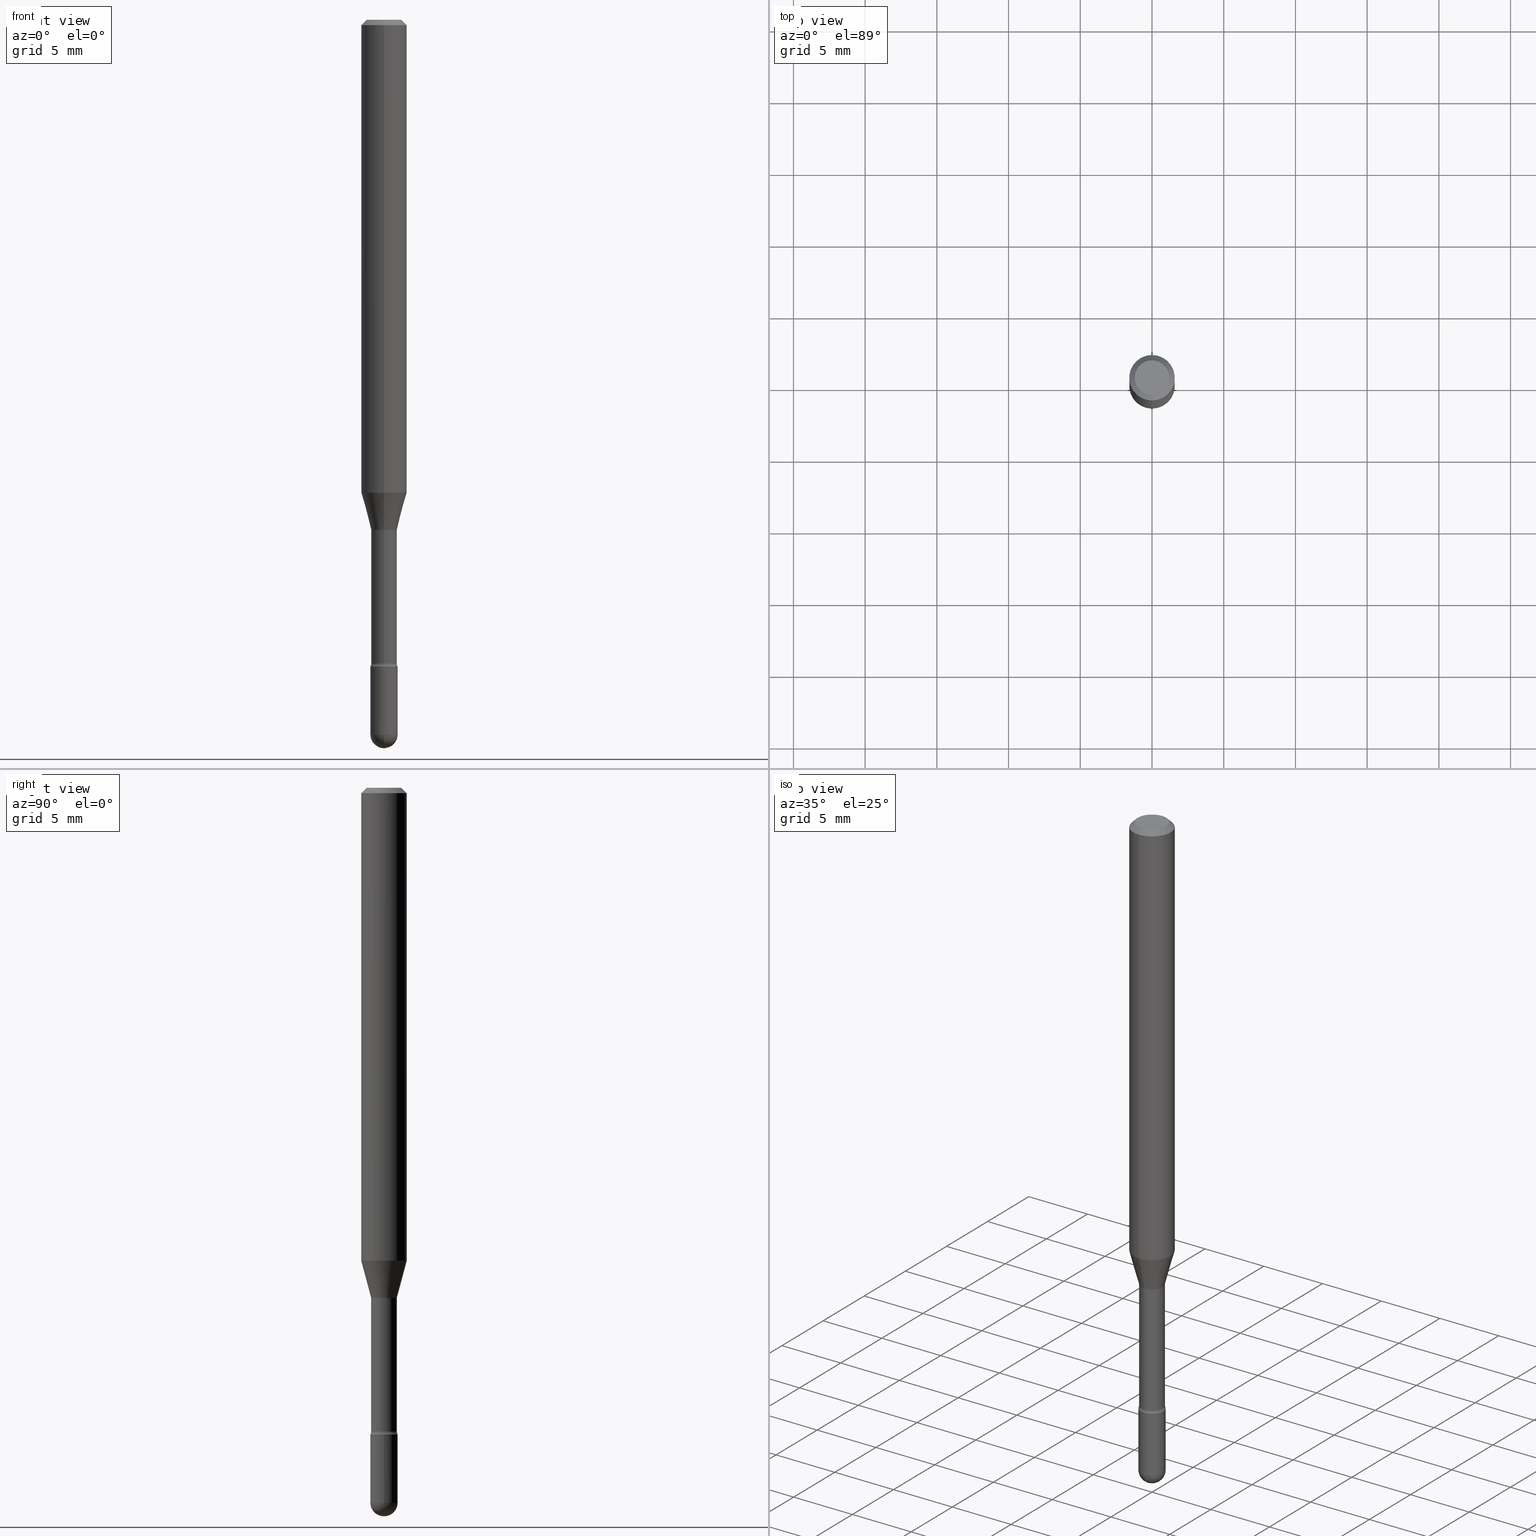
[diagram: canonical four-view strip — front | top / right | iso, engineering-drawing reading convention]
A machine part, canonical four-view strip (front | top / right | iso — engineering-drawing reading convention). The complete STEP part file that produces these views, byte-faithful:
ISO-10303-21;
HEADER;
FILE_DESCRIPTION (( 'STEP AP203' ),
    '1' );
FILE_NAME ('09817.STEP',
    '2024-04-10T01:46:46',
    ( '' ),
    ( '' ),
    'SwSTEP 2.0',
    'SolidWorks 2023',
    '' );
FILE_SCHEMA (( 'CONFIG_CONTROL_DESIGN' ));
ENDSEC;

DATA;
#1 = EDGE_CURVE ( 'NONE', #482, #244, #162, .T. ) ;
#2 = MECHANICAL_CONTEXT ( 'NONE', #21, 'mechanical' ) ;
#3 = EDGE_LOOP ( 'NONE', ( #258, #252, #180, #69 ) ) ;
#4 = FACE_OUTER_BOUND ( 'NONE', #345, .T. ) ;
#5 = AXIS2_PLACEMENT_3D ( 'NONE', #454, #37, #512 ) ;
#6 = AXIS2_PLACEMENT_3D ( 'NONE', #473, #347, #255 ) ;
#7 = DIRECTION ( 'NONE',  ( -2.445465254371968142E-29, 3.491486425241759553E-15, 1.000000000000000000 ) ) ;
#8 = DIRECTION ( 'NONE',  ( 2.445465254371967862E-29, -3.491486425241759553E-15, -1.000000000000000000 ) ) ;
#9 = ORIENTED_EDGE ( 'NONE', *, *, #80, .F. ) ;
#10 = EDGE_CURVE ( 'NONE', #396, #169, #560, .T. ) ;
#11 = ORIENTED_EDGE ( 'NONE', *, *, #10, .F. ) ;
#12 = DIRECTION ( 'NONE',  ( -2.445465254371968142E-29, 3.491486425241759553E-15, 1.000000000000000000 ) ) ;
#13 = APPROVAL_ROLE ( '' ) ;
#14 = CARTESIAN_POINT ( 'NONE',  ( -3.508938745537004743E-16, -0.05025000000000488104, -1.401974787463810879 ) ) ;
#15 = CARTESIAN_POINT ( 'NONE',  ( -2.461494343883982794E-16, -0.03525000000000625550, -1.767098259685360384 ) ) ;
#16 = CARTESIAN_POINT ( 'NONE',  ( -1.169113584055446105E-44, 1.669184350826100908E-30, 4.780733988912460139E-16 ) ) ;
#17 = AXIS2_PLACEMENT_3D ( 'NONE', #123, #481, #90 ) ;
#18 = DIRECTION ( 'NONE',  ( -6.982962677686265922E-15, -1.000000000000000000, 4.370956789862821150E-15 ) ) ;
#19 = APPROVAL_PERSON_ORGANIZATION ( #270, #321, #448 ) ;
#20 = DATE_TIME_ROLE ( 'creation_date' ) ;
#21 = APPLICATION_CONTEXT ( 'configuration controlled 3d designs of mechanical parts and assemblies' ) ;
#22 = PERSON_AND_ORGANIZATION ( #108, #428 ) ;
#23 = PERSON_AND_ORGANIZATION ( #108, #428 ) ;
#24 = DIRECTION ( 'NONE',  ( -2.445465254371968142E-29, 3.491486425241759553E-15, 1.000000000000000000 ) ) ;
#25 = DIRECTION ( 'NONE',  ( 1.000000000000000000, -6.982962677686265922E-15, 4.883557194083112340E-29 ) ) ;
#26 = AXIS2_PLACEMENT_3D ( 'NONE', #202, #563, #508 ) ;
#27 = DIRECTION ( 'NONE',  ( -2.445465254371968142E-29, 3.491486425241759553E-15, 1.000000000000000000 ) ) ;
#28 = ADVANCED_FACE ( 'NONE', ( #100 ), #229, .T. ) ;
#29 = CARTESIAN_POINT ( 'NONE',  ( 0.000000000000000000, 0.000000000000000000, 0.000000000000000000 ) ) ;
#30 = VERTEX_POINT ( 'NONE', #38 ) ;
#31 = CARTESIAN_POINT ( 'NONE',  ( 4.321383671524591751E-29, -6.169790597593636121E-15, -1.767098259685360606 ) ) ;
#32 = DIRECTION ( 'NONE',  ( -2.445465254371968142E-29, 3.491486425241759553E-15, 1.000000000000000000 ) ) ;
#33 = ORIENTED_EDGE ( 'NONE', *, *, #543, .T. ) ;
#34 = CARTESIAN_POINT ( 'NONE',  ( 4.340707130978617347E-29, -6.197379376446583794E-15, -1.775000000000000133 ) ) ;
#35 = APPLICATION_CONTEXT ( 'configuration controlled 3d designs of mechanical parts and assemblies' ) ;
#36 = ORIENTED_EDGE ( 'NONE', *, *, #236, .T. ) ;
#37 = DIRECTION ( 'NONE',  ( -2.445465254371968142E-29, 3.491486425241759553E-15, 1.000000000000000000 ) ) ;
#38 = CARTESIAN_POINT ( 'NONE',  ( 4.440892098500945650E-16, 0.06249999999999995143, -0.01500000000000030129 ) ) ;
#39 = EDGE_CURVE ( 'NONE', #209, #77, #195, .T. ) ;
#40 = EDGE_LOOP ( 'NONE', ( #566, #267, #472, #11 ) ) ;
#41 = DIRECTION ( 'NONE',  ( -2.438088387897960049E-29, 3.491481338843145188E-15, 1.000000000000000000 ) ) ;
#42 = VERTEX_POINT ( 'NONE', #557 ) ;
#43 = AXIS2_PLACEMENT_3D ( 'NONE', #348, #429, #434 ) ;
#44 = SPHERICAL_SURFACE ( 'NONE', #146, 0.03750000000000004025 ) ;
#45 = DIRECTION ( 'NONE',  ( -2.445465254371968142E-29, 3.491486425241759553E-15, 1.000000000000000000 ) ) ;
#46 = ORIENTED_EDGE ( 'NONE', *, *, #39, .F. ) ;
#47 = DIRECTION ( 'NONE',  ( -6.982962677686265922E-15, -1.000000000000000000, 0.000000000000000000 ) ) ;
#48 = VERTEX_POINT ( 'NONE', #433 ) ;
#49 = FACE_OUTER_BOUND ( 'NONE', #217, .T. ) ;
#50 = CARTESIAN_POINT ( 'NONE',  ( -3.508938745536921420E-16, -0.05025000000000623412, -1.767098259685360384 ) ) ;
#51 = ORIENTED_EDGE ( 'NONE', *, *, #80, .T. ) ;
#52 = EDGE_CURVE ( 'NONE', #441, #561, #238, .T. ) ;
#53 = AXIS2_PLACEMENT_3D ( 'NONE', #221, #356, #94 ) ;
#54 = APPROVAL_PERSON_ORGANIZATION ( #456, #197, #346 ) ;
#55 = FACE_OUTER_BOUND ( 'NONE', #359, .T. ) ;
#56 = ORIENTED_EDGE ( 'NONE', *, *, #187, .T. ) ;
#57 = CIRCLE ( 'NONE', #175, 0.06250000000000000000 ) ;
#58 = AXIS2_PLACEMENT_3D ( 'NONE', #559, #208, #471 ) ;
#59 = ADVANCED_FACE ( 'NONE', ( #303 ), #329, .T. ) ;
#60 = EDGE_CURVE ( 'NONE', #42, #333, #161, .T. ) ;
#61 = CC_DESIGN_PERSON_AND_ORGANIZATION_ASSIGNMENT ( #212, #558, ( #410 ) ) ;
#62 = PERSON_AND_ORGANIZATION_ROLE ( 'design_supplier' ) ;
#63 = EDGE_CURVE ( 'NONE', #42, #505, #57, .T. ) ;
#64 = LINE ( 'NONE', #565, #531 ) ;
#65 = AXIS2_PLACEMENT_3D ( 'NONE', #308, #96, #266 ) ;
#66 =( GEOMETRIC_REPRESENTATION_CONTEXT ( 3 ) GLOBAL_UNCERTAINTY_ASSIGNED_CONTEXT ( ( #460 ) ) GLOBAL_UNIT_ASSIGNED_CONTEXT ( ( #449, #499, #173 ) ) REPRESENTATION_CONTEXT ( 'NONE', 'WORKASPACE' ) );
#67 = DIRECTION ( 'NONE',  ( -2.445465254371968142E-29, 3.491486425241759553E-15, 1.000000000000000000 ) ) ;
#68 = CARTESIAN_POINT ( 'NONE',  ( 3.668197881557972567E-31, -5.237229637862668616E-17, -0.01500000000000008271 ) ) ;
#69 = ORIENTED_EDGE ( 'NONE', *, *, #385, .F. ) ;
#70 = DIRECTION ( 'NONE',  ( -6.982962677686266711E-15, -1.000000000000000000, 0.000000000000000000 ) ) ;
#71 = CIRCLE ( 'NONE', #204, 0.04749999999999999362 ) ;
#72 = DIRECTION ( 'NONE',  ( 1.000000000000000000, -6.982962677686268288E-15, 0.000000000000000000 ) ) ;
#73 = ORIENTED_EDGE ( 'NONE', *, *, #509, .F. ) ;
#74 = ADVANCED_FACE ( 'NONE', ( #4 ), #403, .F. ) ;
#75 = CARTESIAN_POINT ( 'NONE',  ( 3.490935988483317697E-16, 0.03576111260565909694, -1.398092501787273179 ) ) ;
#76 = CARTESIAN_POINT ( 'NONE',  ( 4.440892098500940720E-16, 0.06249999999999543421, -1.298301615493748562 ) ) ;
#77 = VERTEX_POINT ( 'NONE', #500 ) ;
#78 = CARTESIAN_POINT ( 'NONE',  ( 4.340707130978617347E-29, -6.197379376446583794E-15, -1.775000000000000133 ) ) ;
#79 = ORIENTED_EDGE ( 'NONE', *, *, #543, .F. ) ;
#80 = EDGE_CURVE ( 'NONE', #169, #294, #107, .T. ) ;
#81 = DIRECTION ( 'NONE',  ( 1.000000000000000000, -6.982962677686266711E-15, 4.876176775795935793E-29 ) ) ;
#82 = APPROVAL ( #228, 'UNSPECIFIED' ) ;
#83 = MANIFOLD_SOLID_BREP ( 'Body-Move/Copy2[1]', #203 ) ;
#84 = VECTOR ( 'NONE', #207, 39.37007874015748143 ) ;
#85 = ORIENTED_EDGE ( 'NONE', *, *, #457, .F. ) ;
#86 = CIRCLE ( 'NONE', #401, 0.03750000000000004025 ) ;
#87 = DIRECTION ( 'NONE',  ( 1.000000000000000000, -7.105427357601001070E-15, 4.926315570832500212E-29 ) ) ;
#88 = ORIENTED_EDGE ( 'NONE', *, *, #259, .F. ) ;
#89 = COORDINATED_UNIVERSAL_TIME_OFFSET ( 5, 0, .BEHIND. ) ;
#90 = DIRECTION ( 'NONE',  ( -6.982962677686266711E-15, -1.000000000000000000, 0.000000000000000000 ) ) ;
#91 = CARTESIAN_POINT ( 'NONE',  ( -1.169113584055446105E-44, 1.669184350826100908E-30, 4.780733988912460139E-16 ) ) ;
#92 = ADVANCED_FACE ( 'NONE', ( #327 ), #277, .T. ) ;
#93 = CARTESIAN_POINT ( 'NONE',  ( 3.316907271900976096E-16, 0.04749999999999999362, 3.181769901283382890E-17 ) ) ;
#94 = DIRECTION ( 'NONE',  ( -6.982962677686266711E-15, -1.000000000000000000, 3.491486425241760737E-15 ) ) ;
#95 = VERTEX_POINT ( 'NONE', #554 ) ;
#96 = DIRECTION ( 'NONE',  ( -2.445465254371968142E-29, 3.491486425241759553E-15, 1.000000000000000000 ) ) ;
#97 = VECTOR ( 'NONE', #506, 39.37007874015748143 ) ;
#98 = LOCAL_TIME ( 21, 46, 46.00000000000000000, #273 ) ;
#99 = APPROVAL_DATE_TIME ( #235, #197 ) ;
#100 = FACE_OUTER_BOUND ( 'NONE', #479, .T. ) ;
#101 = DIRECTION ( 'NONE',  ( -1.000000000000000000, 6.982962677686265922E-15, -4.883557194083112340E-29 ) ) ;
#102 = ORIENTED_EDGE ( 'NONE', *, *, #220, .T. ) ;
#103 = CARTESIAN_POINT ( 'NONE',  ( -2.497185146378532502E-16, -0.03576111260566886690, -1.398092501787273179 ) ) ;
#104 = EDGE_CURVE ( 'NONE', #505, #30, #251, .T. ) ;
#105 = CYLINDRICAL_SURFACE ( 'NONE', #140, 0.03749999999999999861 ) ;
#106 = CIRCLE ( 'NONE', #239, 0.01499999999999997689 ) ;
#107 = LINE ( 'NONE', #408, #151 ) ;
#108 = PERSON ( 'UNSPECIFIED', 'UNSPECIFIED', 'UNSPECIFIED', ('UNSPECIFIED'), ('UNSPECIFIED'), ('UNSPECIFIED') ) ;
#109 = TOROIDAL_SURFACE ( 'NONE', #253, 0.05024999999999998912, 0.01500000000000001506 ) ;
#110 = CARTESIAN_POINT ( 'NONE',  ( 0.03749999999999999861, -2.618611004132350016E-16, 1.828566290923475922E-30 ) ) ;
#111 = APPLICATION_PROTOCOL_DEFINITION ( 'international standard', 'config_control_design', 1994, #35 ) ;
#112 = ORIENTED_EDGE ( 'NONE', *, *, #544, .T. ) ;
#113 = CARTESIAN_POINT ( 'NONE',  ( 4.364351673553919652E-16, 0.06249999999999995143, -0.01500000000000030129 ) ) ;
#114 = ADVANCED_FACE ( 'NONE', ( #281 ), #551, .T. ) ;
#115 = APPLICATION_PROTOCOL_DEFINITION ( 'international standard', 'config_control_design', 1994, #21 ) ;
#116 = CARTESIAN_POINT ( 'NONE',  ( 3.668197881557972567E-31, -5.237229637862668616E-17, -0.01500000000000008271 ) ) ;
#117 = ORIENTED_EDGE ( 'NONE', *, *, #389, .T. ) ;
#118 = CARTESIAN_POINT ( 'NONE',  ( 2.664535259100808486E-16, 0.03749999999999379524, -1.775000000000000133 ) ) ;
#119 = DIRECTION ( 'NONE',  ( -2.445465254371968142E-29, 3.491486425241759553E-15, 1.000000000000000000 ) ) ;
#120 = VECTOR ( 'NONE', #283, 39.37007874015748143 ) ;
#121 = AXIS2_PLACEMENT_3D ( 'NONE', #280, #409, #453 ) ;
#122 = ORIENTED_EDGE ( 'NONE', *, *, #257, .T. ) ;
#123 = CARTESIAN_POINT ( 'NONE',  ( 3.418986635518755214E-29, -4.881420991222554708E-15, -1.398092501787273179 ) ) ;
#124 = ORIENTED_EDGE ( 'NONE', *, *, #455, .F. ) ;
#125 = APPROVAL_STATUS ( 'not_yet_approved' ) ;
#126 = DIRECTION ( 'NONE',  ( 1.000000000000000000, -6.982962677686268288E-15, 0.000000000000000000 ) ) ;
#127 = ADVANCED_FACE ( 'NONE', ( #377 ), #451, .F. ) ;
#128 = EDGE_LOOP ( 'NONE', ( #159, #51, #134, #213, #507 ) ) ;
#129 = CARTESIAN_POINT ( 'NONE',  ( 4.340700826510243157E-29, -6.197388404804124065E-15, -1.775000000000000133 ) ) ;
#130 = ORIENTED_EDGE ( 'NONE', *, *, #60, .T. ) ;
#131 = AXIS2_PLACEMENT_3D ( 'NONE', #129, #45, #47 ) ;
#132 = DIRECTION ( 'NONE',  ( 1.000000000000000000, -6.982962677686268288E-15, 0.000000000000000000 ) ) ;
#133 = SECURITY_CLASSIFICATION ( '', '', #497 ) ;
#134 = ORIENTED_EDGE ( 'NONE', *, *, #236, .F. ) ;
#135 = VERTEX_POINT ( 'NONE', #118 ) ;
#136 = EDGE_CURVE ( 'NONE', #482, #209, #539, .T. ) ;
#137 = DIRECTION ( 'NONE',  ( 6.982962677686265922E-15, 1.000000000000000000, 0.000000000000000000 ) ) ;
#138 = CALENDAR_DATE ( 2024, 9, 4 ) ;
#139 = AXIS2_PLACEMENT_3D ( 'NONE', #34, #41, #423 ) ;
#140 = AXIS2_PLACEMENT_3D ( 'NONE', #269, #444, #323 ) ;
#141 = DIRECTION ( 'NONE',  ( -6.982962677686265922E-15, -1.000000000000000000, 3.491486425241759948E-15 ) ) ;
#142 = EDGE_LOOP ( 'NONE', ( #176, #416, #262, #376 ) ) ;
#143 = CARTESIAN_POINT ( 'NONE',  ( 3.428485609800787057E-29, -4.894968807958481776E-15, -1.401974787463811101 ) ) ;
#144 = PRODUCT_RELATED_PRODUCT_CATEGORY ( 'detail', '', ( #410 ) ) ;
#145 = DIRECTION ( 'NONE',  ( -1.000000000000000000, 7.105427357601001070E-15, -4.926315508542082329E-29 ) ) ;
#146 = AXIS2_PLACEMENT_3D ( 'NONE', #480, #517, #137 ) ;
#147 = CALENDAR_DATE ( 2024, 9, 4 ) ;
#148 = FACE_OUTER_BOUND ( 'NONE', #225, .T. ) ;
#149 = FACE_OUTER_BOUND ( 'NONE', #290, .T. ) ;
#150 = DIRECTION ( 'NONE',  ( 4.937700262164548042E-15, 0.7071067811865451302, -0.7071067811865499042 ) ) ;
#151 = VECTOR ( 'NONE', #541, 39.37007874015748143 ) ;
#152 = AXIS2_PLACEMENT_3D ( 'NONE', #344, #515, #126 ) ;
#153 = LOCAL_TIME ( 21, 46, 46.00000000000000000, #184 ) ;
#154 = ORIENTED_EDGE ( 'NONE', *, *, #200, .T. ) ;
#155 = ADVANCED_FACE ( 'NONE', ( #502 ), #289, .T. ) ;
#156 = EDGE_CURVE ( 'NONE', #77, #244, #530, .T. ) ;
#157 = ORIENTED_EDGE ( 'NONE', *, *, #52, .F. ) ;
#158 = DIRECTION ( 'NONE',  ( -2.445468806185136597E-29, 3.491481338843145583E-15, 1.000000000000000000 ) ) ;
#159 = ORIENTED_EDGE ( 'NONE', *, *, #10, .T. ) ;
#160 = LINE ( 'NONE', #110, #120 ) ;
#161 = LINE ( 'NONE', #340, #84 ) ;
#162 = CIRCLE ( 'NONE', #519, 0.01500000000000001159 ) ;
#163 = AXIS2_PLACEMENT_3D ( 'NONE', #233, #402, #398 ) ;
#164 = DIRECTION ( 'NONE',  ( 0.000000000000000000, 0.000000000000000000, 1.000000000000000000 ) ) ;
#165 = LOCAL_TIME ( 21, 46, 46.00000000000000000, #89 ) ;
#166 = ORIENTED_EDGE ( 'NONE', *, *, #201, .T. ) ;
#167 = CARTESIAN_POINT ( 'NONE',  ( 3.418986635518755214E-29, -4.881420991222554708E-15, -1.398092501787273179 ) ) ;
#168 = PLANE ( 'NONE',  #43 ) ;
#169 = VERTEX_POINT ( 'NONE', #459 ) ;
#170 = FACE_OUTER_BOUND ( 'NONE', #282, .T. ) ;
#171 = ORIENTED_EDGE ( 'NONE', *, *, #39, .T. ) ;
#172 = CARTESIAN_POINT ( 'NONE',  ( 3.570477247194844829E-16, 0.05024999999999509720, -1.401974787463811323 ) ) ;
#173 =( NAMED_UNIT ( * ) SI_UNIT ( $, .STERADIAN. ) SOLID_ANGLE_UNIT ( ) );
#174 = CARTESIAN_POINT ( 'NONE',  ( 0.03749999999999999861, -6.459240476859818795E-15, -1.775000000000000133 ) ) ;
#175 = AXIS2_PLACEMENT_3D ( 'NONE', #513, #27, #422 ) ;
#176 = ORIENTED_EDGE ( 'NONE', *, *, #191, .T. ) ;
#177 = VECTOR ( 'NONE', #24, 39.37007874015748143 ) ;
#178 = CC_DESIGN_APPROVAL ( #82, ( #477 ) ) ;
#179 = CC_DESIGN_PERSON_AND_ORGANIZATION_ASSIGNMENT ( #404, #192, ( #477 ) ) ;
#180 = ORIENTED_EDGE ( 'NONE', *, *, #326, .T. ) ;
#181 = ORIENTED_EDGE ( 'NONE', *, *, #183, .F. ) ;
#182 = DIRECTION ( 'NONE',  ( -6.982962677686266711E-15, -1.000000000000000000, 0.000000000000000000 ) ) ;
#183 = EDGE_CURVE ( 'NONE', #294, #514, #297, .T. ) ;
#184 = COORDINATED_UNIVERSAL_TIME_OFFSET ( 5, 0, .BEHIND. ) ;
#185 = CARTESIAN_POINT ( 'NONE',  ( 4.799232532138329338E-29, -6.852032127479672087E-15, -1.962499999999999689 ) ) ;
#186 = AXIS2_PLACEMENT_3D ( 'NONE', #31, #556, #336 ) ;
#187 = EDGE_CURVE ( 'NONE', #561, #514, #160, .T. ) ;
#188 = CIRCLE ( 'NONE', #163, 0.06250000000000000000 ) ;
#189 = CC_DESIGN_APPROVAL ( #321, ( #133 ) ) ;
#190 = DATE_AND_TIME ( #147, #367 ) ;
#191 = EDGE_CURVE ( 'NONE', #349, #48, #246, .T. ) ;
#192 = PERSON_AND_ORGANIZATION_ROLE ( 'creator' ) ;
#193 = LENGTH_MEASURE_WITH_UNIT ( LENGTH_MEASURE( 0.02539999999999999897 ), #365 );
#194 = DIRECTION ( 'NONE',  ( 6.982962677686265922E-15, 1.000000000000000000, 0.000000000000000000 ) ) ;
#195 = CIRCLE ( 'NONE', #475, 0.01500000000000001159 ) ;
#196 = VECTOR ( 'NONE', #150, 39.37007874015748143 ) ;
#197 = APPROVAL ( #125, 'UNSPECIFIED' ) ;
#198 = DATE_AND_TIME ( #240, #98 ) ;
#199 = LINE ( 'NONE', #525, #393 ) ;
#200 = EDGE_CURVE ( 'NONE', #48, #135, #392, .T. ) ;
#201 = EDGE_CURVE ( 'NONE', #335, #333, #214, .T. ) ;
#202 = CARTESIAN_POINT ( 'NONE',  ( 3.570477247194939493E-16, 0.05024999999999388983, -1.767098259685361050 ) ) ;
#203 = CLOSED_SHELL ( 'NONE', ( #424, #295, #114, #464, #155 ) ) ;
#204 = AXIS2_PLACEMENT_3D ( 'NONE', #391, #353, #546 ) ;
#205 = ORIENTED_EDGE ( 'NONE', *, *, #1, .T. ) ;
#206 = DIRECTION ( 'NONE',  ( -6.982962677686266711E-15, -1.000000000000000000, 3.491486425241760737E-15 ) ) ;
#207 = DIRECTION ( 'NONE',  ( -2.445465254371968142E-29, 3.491486425241759553E-15, 1.000000000000000000 ) ) ;
#208 = DIRECTION ( 'NONE',  ( -2.445468806185136597E-29, 3.491481338843145583E-15, 1.000000000000000000 ) ) ;
#209 = VERTEX_POINT ( 'NONE', #75 ) ;
#210 = CARTESIAN_POINT ( 'NONE',  ( 3.668197881557972567E-31, -5.237229637862668616E-17, -0.01500000000000008271 ) ) ;
#211 = DIRECTION ( 'NONE',  ( 7.105427357601001859E-15, 1.000000000000000000, 0.000000000000000000 ) ) ;
#212 = PERSON_AND_ORGANIZATION ( #108, #428 ) ;
#213 = ORIENTED_EDGE ( 'NONE', *, *, #187, .F. ) ;
#214 = LINE ( 'NONE', #374, #97 ) ;
#215 = TOROIDAL_SURFACE ( 'NONE', #65, 0.05024999999999998912, 0.01500000000000001506 ) ;
#216 = EDGE_LOOP ( 'NONE', ( #373, #154, #33, #357 ) ) ;
#217 = EDGE_LOOP ( 'NONE', ( #46, #439, #205, #338 ) ) ;
#218 = CARTESIAN_POINT ( 'NONE',  ( -0.03749999999999999861, -6.258252226053091317E-15, -1.775000000000000133 ) ) ;
#219 = ORIENTED_EDGE ( 'NONE', *, *, #491, .T. ) ;
#220 = EDGE_CURVE ( 'NONE', #381, #30, #382, .T. ) ;
#221 = CARTESIAN_POINT ( 'NONE',  ( -1.169113584055446105E-44, 1.669184350826100908E-30, 4.780733988912460139E-16 ) ) ;
#222 = AXIS2_PLACEMENT_3D ( 'NONE', #78, #334, #463 ) ;
#223 = CONICAL_SURFACE ( 'NONE', #331, 0.06250000000000000000, 0.7853981633974483900 ) ;
#224 = ORIENTED_EDGE ( 'NONE', *, *, #337, .T. ) ;
#225 = EDGE_LOOP ( 'NONE', ( #369, #171, #250, #555 ) ) ;
#226 = FACE_OUTER_BOUND ( 'NONE', #552, .T. ) ;
#227 = EDGE_CURVE ( 'NONE', #209, #482, #264, .T. ) ;
#228 = APPROVAL_STATUS ( 'not_yet_approved' ) ;
#229 = CYLINDRICAL_SURFACE ( 'NONE', #495, 0.06250000000000000000 ) ;
#230 = PERSON_AND_ORGANIZATION ( #108, #428 ) ;
#231 = AXIS2_PLACEMENT_3D ( 'NONE', #413, #411, #285 ) ;
#232 = CONICAL_SURFACE ( 'NONE', #511, 0.06250000000000000000, 0.7853981633974483900 ) ;
#233 = CARTESIAN_POINT ( 'NONE',  ( 3.668197881557972567E-31, -5.237229637862668616E-17, -0.01500000000000008271 ) ) ;
#234 = COORDINATED_UNIVERSAL_TIME_OFFSET ( 5, 0, .BEHIND. ) ;
#235 = DATE_AND_TIME ( #319, #165 ) ;
#236 = EDGE_CURVE ( 'NONE', #514, #294, #521, .T. ) ;
#237 = PRODUCT_DEFINITION_SHAPE ( 'NONE', 'NONE',  #288 ) ;
#238 = CIRCLE ( 'NONE', #276, 0.03749999999999999861 ) ;
#239 = AXIS2_PLACEMENT_3D ( 'NONE', #50, #101, #261 ) ;
#240 = CALENDAR_DATE ( 2024, 9, 4 ) ;
#241 = ADVANCED_FACE ( 'NONE', ( #420 ), #232, .T. ) ;
#242 = DIRECTION ( 'NONE',  ( -2.445465254371968142E-29, 3.491486425241759553E-15, 1.000000000000000000 ) ) ;
#243 = DIRECTION ( 'NONE',  ( -6.982962677686265133E-15, -1.000000000000000000, 0.000000000000000000 ) ) ;
#244 = VERTEX_POINT ( 'NONE', #339 ) ;
#245 = DIRECTION ( 'NONE',  ( -2.445465254371968142E-29, 3.491486425241759553E-15, 1.000000000000000000 ) ) ;
#246 = CIRCLE ( 'NONE', #5, 0.03525000000000008682 ) ;
#247 = CARTESIAN_POINT ( 'NONE',  ( 3.428480630248274959E-29, -4.894975938961098248E-15, -1.401974787463811101 ) ) ;
#248 = ORIENTED_EDGE ( 'NONE', *, *, #520, .F. ) ;
#249 = DIRECTION ( 'NONE',  ( -2.445465254371968142E-29, 3.491486425241759553E-15, 1.000000000000000000 ) ) ;
#250 = ORIENTED_EDGE ( 'NONE', *, *, #156, .T. ) ;
#251 = LINE ( 'NONE', #370, #383 ) ;
#252 = ORIENTED_EDGE ( 'NONE', *, *, #227, .T. ) ;
#253 = AXIS2_PLACEMENT_3D ( 'NONE', #143, #7, #492 ) ;
#254 = ORIENTED_EDGE ( 'NONE', *, *, #326, .F. ) ;
#255 = DIRECTION ( 'NONE',  ( -6.982962677686265922E-15, -1.000000000000000000, 0.000000000000000000 ) ) ;
#256 = ADVANCED_FACE ( 'NONE', ( #417 ), #427, .F. ) ;
#257 = EDGE_CURVE ( 'NONE', #209, #505, #199, .T. ) ;
#258 = ORIENTED_EDGE ( 'NONE', *, *, #257, .F. ) ;
#259 = EDGE_CURVE ( 'NONE', #95, #135, #562, .T. ) ;
#260 = DIRECTION ( 'NONE',  ( -2.445465254371968142E-29, 3.491486425241759553E-15, 1.000000000000000000 ) ) ;
#261 = DIRECTION ( 'NONE',  ( -6.982962677686266711E-15, -1.000000000000000000, 0.000000000000000000 ) ) ;
#262 = ORIENTED_EDGE ( 'NONE', *, *, #503, .F. ) ;
#263 = DIMENSIONAL_EXPONENTS ( 1.000000000000000000, 0.000000000000000000, 0.000000000000000000, 0.000000000000000000, 0.000000000000000000, 0.000000000000000000, 0.000000000000000000 ) ;
#264 = CIRCLE ( 'NONE', #498, 0.03576111260566398192 ) ;
#265 = ORIENTED_EDGE ( 'NONE', *, *, #156, .F. ) ;
#266 = DIRECTION ( 'NONE',  ( -6.982962677686265922E-15, -1.000000000000000000, 3.491486425241759553E-15 ) ) ;
#267 = ORIENTED_EDGE ( 'NONE', *, *, #455, .T. ) ;
#268 = SPHERICAL_SURFACE ( 'NONE', #121, 0.03750000000000004025 ) ;
#269 = CARTESIAN_POINT ( 'NONE',  ( 0.000000000000000000, 0.000000000000000000, 0.000000000000000000 ) ) ;
#270 = PERSON_AND_ORGANIZATION ( #108, #428 ) ;
#271 = EDGE_LOOP ( 'NONE', ( #85, #425, #469, #265 ) ) ;
#272 = VECTOR ( 'NONE', #442, 39.37007874015748143 ) ;
#273 = COORDINATED_UNIVERSAL_TIME_OFFSET ( 5, 0, .BEHIND. ) ;
#274 = CC_DESIGN_PERSON_AND_ORGANIZATION_ASSIGNMENT ( #230, #528, ( #288 ) ) ;
#275 = FACE_OUTER_BOUND ( 'NONE', #524, .T. ) ;
#276 = AXIS2_PLACEMENT_3D ( 'NONE', #351, #518, #132 ) ;
#277 = CYLINDRICAL_SURFACE ( 'NONE', #309, 0.03525000000000003825 ) ;
#278 = AXIS2_PLACEMENT_3D ( 'NONE', #301, #468, #387 ) ;
#279 = CC_DESIGN_DATE_AND_TIME_ASSIGNMENT ( #310, #20, ( #288 ) ) ;
#280 = CARTESIAN_POINT ( 'NONE',  ( 4.799232532138329899E-29, -6.852032127479672876E-15, -1.962499999999999911 ) ) ;
#281 = FACE_OUTER_BOUND ( 'NONE', #419, .T. ) ;
#282 = EDGE_LOOP ( 'NONE', ( #88, #79 ) ) ;
#283 = DIRECTION ( 'NONE',  ( -2.445468806185136877E-29, 3.491481338843145188E-15, 1.000000000000000000 ) ) ;
#284 = ORIENTED_EDGE ( 'NONE', *, *, #490, .F. ) ;
#285 = DIRECTION ( 'NONE',  ( -6.982962677686266711E-15, -1.000000000000000000, 0.000000000000000000 ) ) ;
#286 = AXIS2_PLACEMENT_3D ( 'NONE', #350, #260, #432 ) ;
#287 = ORIENTED_EDGE ( 'NONE', *, *, #52, .T. ) ;
#288 = PRODUCT_DEFINITION ( 'UNKNOWN', '', #477, #292 ) ;
#289 = CYLINDRICAL_SURFACE ( 'NONE', #547, 0.03749999999999999861 ) ;
#290 = EDGE_LOOP ( 'NONE', ( #388, #534, #430, #421 ) ) ;
#291 = DIRECTION ( 'NONE',  ( 2.445465254371968142E-29, -3.491486425241759553E-15, -1.000000000000000000 ) ) ;
#292 = DESIGN_CONTEXT ( 'detailed design', #35, 'design' ) ;
#293 = DIRECTION ( 'NONE',  ( -2.445465254371968142E-29, 3.491486425241759553E-15, 1.000000000000000000 ) ) ;
#294 = VERTEX_POINT ( 'NONE', #218 ) ;
#295 = ADVANCED_FACE ( 'NONE', ( #397 ), #44, .T. ) ;
#296 = EDGE_CURVE ( 'NONE', #48, #349, #452, .T. ) ;
#297 = CIRCLE ( 'NONE', #222, 0.03749999999999999861 ) ;
#298 = CC_DESIGN_PERSON_AND_ORGANIZATION_ASSIGNMENT ( #23, #536, ( #133 ) ) ;
#299 = AXIS2_PLACEMENT_3D ( 'NONE', #247, #293, #431 ) ;
#300 = CARTESIAN_POINT ( 'NONE',  ( 0.000000000000000000, 0.000000000000000000, 0.000000000000000000 ) ) ;
#301 = CARTESIAN_POINT ( 'NONE',  ( 2.023527029719468871E-45, -2.889117273218621529E-31, -8.274679046761115566E-17 ) ) ;
#302 = CC_DESIGN_SECURITY_CLASSIFICATION ( #133, ( #477 ) ) ;
#303 = FACE_OUTER_BOUND ( 'NONE', #3, .T. ) ;
#304 = ORIENTED_EDGE ( 'NONE', *, *, #63, .F. ) ;
#305 = DIRECTION ( 'NONE',  ( -2.445465254371968142E-29, 3.491486425241759553E-15, 1.000000000000000000 ) ) ;
#306 = ADVANCED_FACE ( 'NONE', ( #49 ), #215, .F. ) ;
#307 = ORIENTED_EDGE ( 'NONE', *, *, #220, .F. ) ;
#308 = CARTESIAN_POINT ( 'NONE',  ( 3.428485609800787057E-29, -4.894968807958481776E-15, -1.401974787463811101 ) ) ;
#309 = AXIS2_PLACEMENT_3D ( 'NONE', #16, #361, #206 ) ;
#310 = DATE_AND_TIME ( #138, #360 ) ;
#311 = AXIS2_PLACEMENT_3D ( 'NONE', #91, #523, #141 ) ;
#312 = DIRECTION ( 'NONE',  ( -6.982962677686266711E-15, -1.000000000000000000, 0.000000000000000000 ) ) ;
#313 = AXIS2_PLACEMENT_3D ( 'NONE', #300, #164, #478 ) ;
#314 = CARTESIAN_POINT ( 'NONE',  ( 3.174951490384956407E-29, -4.533002466365868923E-15, -1.298301615493748340 ) ) ;
#315 = DIRECTION ( 'NONE',  ( 1.000000000000000000, -6.982962677686268288E-15, 0.000000000000000000 ) ) ;
#316 = SHAPE_DEFINITION_REPRESENTATION ( #237, #390 ) ;
#317 = CYLINDRICAL_SURFACE ( 'NONE', #53, 0.03525000000000003825 ) ;
#318 = CARTESIAN_POINT ( 'NONE',  ( -2.497185146378532502E-16, -0.03576111260566886690, -1.398092501787273179 ) ) ;
#319 = CALENDAR_DATE ( 2024, 9, 4 ) ;
#320 = DIRECTION ( 'NONE',  ( 2.445465254371968142E-29, -3.491486425241759553E-15, -1.000000000000000000 ) ) ;
#321 = APPROVAL ( #445, 'UNSPECIFIED' ) ;
#322 = CIRCLE ( 'NONE', #384, 0.03749999999999999861 ) ;
#323 = DIRECTION ( 'NONE',  ( 1.000000000000000000, -6.982962677686266711E-15, 4.876176775795935793E-29 ) ) ;
#324 = DIRECTION ( 'NONE',  ( 6.982962677686265922E-15, 1.000000000000000000, -3.491486425241759553E-15 ) ) ;
#325 = CARTESIAN_POINT ( 'NONE',  ( -2.664535259099897351E-16, -0.03750000000000687506, -1.962499999999999689 ) ) ;
#326 = EDGE_CURVE ( 'NONE', #482, #42, #436, .T. ) ;
#327 = FACE_OUTER_BOUND ( 'NONE', #142, .T. ) ;
#328 = DIRECTION ( 'NONE',  ( 6.982962677686265922E-15, 1.000000000000000000, -3.483106191921935554E-15 ) ) ;
#329 = CONICAL_SURFACE ( 'NONE', #17, 0.03576111260566398192, 0.2617993877991499074 ) ;
#330 = DIRECTION ( 'NONE',  ( -6.982962677686265922E-15, -1.000000000000000000, 3.491486425241759553E-15 ) ) ;
#331 = AXIS2_PLACEMENT_3D ( 'NONE', #68, #320, #328 ) ;
#332 = CARTESIAN_POINT ( 'NONE',  ( 4.799232532138329338E-29, -6.852032127479672087E-15, -1.962499999999999689 ) ) ;
#333 = VERTEX_POINT ( 'NONE', #407 ) ;
#334 = DIRECTION ( 'NONE',  ( -2.445468806185136597E-29, 3.491481338843145583E-15, 1.000000000000000000 ) ) ;
#335 = VERTEX_POINT ( 'NONE', #540 ) ;
#336 = DIRECTION ( 'NONE',  ( -6.982962677686265922E-15, -1.000000000000000000, 3.491486425241759553E-15 ) ) ;
#337 = EDGE_CURVE ( 'NONE', #343, #396, #342, .T. ) ;
#338 = ORIENTED_EDGE ( 'NONE', *, *, #503, .T. ) ;
#339 = CARTESIAN_POINT ( 'NONE',  ( -2.461494343884065624E-16, -0.03525000000000488853, -1.401974787463811101 ) ) ;
#340 = CARTESIAN_POINT ( 'NONE',  ( -4.364351673553916201E-16, -0.06250000000000000000, 6.962913004688561093E-16 ) ) ;
#341 = CLOSED_SHELL ( 'NONE', ( #362, #92, #127, #241, #378, #415, #59, #28, #437, #74, #522, #256, #405, #306 ) ) ;
#342 = CIRCLE ( 'NONE', #358, 0.03750000000000004025 ) ;
#343 = VERTEX_POINT ( 'NONE', #535 ) ;
#344 = CARTESIAN_POINT ( 'NONE',  ( 4.340707130978617347E-29, -6.197379376446583794E-15, -1.775000000000000133 ) ) ;
#345 = EDGE_LOOP ( 'NONE', ( #112, #493 ) ) ;
#346 = APPROVAL_ROLE ( '' ) ;
#347 = DIRECTION ( 'NONE',  ( -2.445465254371968142E-29, 3.491486425241759553E-15, 1.000000000000000000 ) ) ;
#348 = CARTESIAN_POINT ( 'NONE',  ( 2.618611004132783890E-16, 0.03749999999999380218, -1.775000000000000133 ) ) ;
#349 = VERTEX_POINT ( 'NONE', #15 ) ;
#350 = CARTESIAN_POINT ( 'NONE',  ( 4.321377395121722522E-29, -6.169799585759774289E-15, -1.767098259685360384 ) ) ;
#351 = CARTESIAN_POINT ( 'NONE',  ( 4.799232532138329338E-29, -6.852032127479672087E-15, -1.962499999999999689 ) ) ;
#352 = AXIS2_PLACEMENT_3D ( 'NONE', #116, #242, #372 ) ;
#353 = DIRECTION ( 'NONE',  ( -2.445465254371968142E-29, 3.491486425241759553E-15, 1.000000000000000000 ) ) ;
#354 = ORIENTED_EDGE ( 'NONE', *, *, #200, .F. ) ;
#355 = CARTESIAN_POINT ( 'NONE',  ( 0.03749999999999999861, -6.786566852376363731E-15, -1.962499999999999689 ) ) ;
#356 = DIRECTION ( 'NONE',  ( -2.445465254371968142E-29, 3.491486425241759553E-15, 1.000000000000000000 ) ) ;
#357 = ORIENTED_EDGE ( 'NONE', *, *, #395, .F. ) ;
#358 = AXIS2_PLACEMENT_3D ( 'NONE', #538, #25, #194 ) ;
#359 = EDGE_LOOP ( 'NONE', ( #124, #224, #248, #157 ) ) ;
#360 = LOCAL_TIME ( 21, 46, 46.00000000000000000, #537 ) ;
#361 = DIRECTION ( 'NONE',  ( -2.445465254371968142E-29, 3.491486425241759553E-15, 1.000000000000000000 ) ) ;
#362 = ADVANCED_FACE ( 'NONE', ( #148 ), #109, .F. ) ;
#363 = APPROVAL_DATE_TIME ( #190, #321 ) ;
#364 = APPROVAL_DATE_TIME ( #533, #82 ) ;
#365 =( LENGTH_UNIT ( ) NAMED_UNIT ( * ) SI_UNIT ( $, .METRE. ) );
#366 = AXIS2_PLACEMENT_3D ( 'NONE', #526, #12, #182 ) ;
#367 = LOCAL_TIME ( 21, 46, 46.00000000000000000, #234 ) ;
#368 = DATE_TIME_ROLE ( 'classification_date' ) ;
#369 = ORIENTED_EDGE ( 'NONE', *, *, #227, .F. ) ;
#370 = CARTESIAN_POINT ( 'NONE',  ( 4.440892098500625669E-16, 0.06250000000000000000, 2.598554973136360665E-16 ) ) ;
#371 = DIRECTION ( 'NONE',  ( -7.105427357601000281E-15, -1.000000000000000000, 0.000000000000000000 ) ) ;
#372 = DIRECTION ( 'NONE',  ( -6.982962677686265922E-15, -1.000000000000000000, 3.483106191921935554E-15 ) ) ;
#373 = ORIENTED_EDGE ( 'NONE', *, *, #296, .F. ) ;
#374 = CARTESIAN_POINT ( 'NONE',  ( -4.287811248607203282E-16, -0.06250000000000005551, -0.01499999999999986587 ) ) ;
#375 = CIRCLE ( 'NONE', #131, 0.03749999999999999861 ) ;
#376 = ORIENTED_EDGE ( 'NONE', *, *, #553, .F. ) ;
#377 = FACE_OUTER_BOUND ( 'NONE', #216, .T. ) ;
#378 = ADVANCED_FACE ( 'NONE', ( #149 ), #532, .T. ) ;
#379 = ORIENTED_EDGE ( 'NONE', *, *, #104, .F. ) ;
#380 = CARTESIAN_POINT ( 'NONE',  ( 4.321383671524591751E-29, -6.169790597593636121E-15, -1.767098259685360606 ) ) ;
#381 = VERTEX_POINT ( 'NONE', #440 ) ;
#382 = LINE ( 'NONE', #113, #196 ) ;
#383 = VECTOR ( 'NONE', #245, 39.37007874015748143 ) ;
#384 = AXIS2_PLACEMENT_3D ( 'NONE', #332, #548, #72 ) ;
#385 = EDGE_CURVE ( 'NONE', #505, #42, #406, .T. ) ;
#386 = APPROVAL_PERSON_ORGANIZATION ( #488, #82, #13 ) ;
#387 = DIRECTION ( 'NONE',  ( -6.982962677686266711E-15, -1.000000000000000000, 3.491486425241759553E-15 ) ) ;
#388 = ORIENTED_EDGE ( 'NONE', *, *, #63, .T. ) ;
#389 = EDGE_CURVE ( 'NONE', #333, #30, #188, .T. ) ;
#390 = ADVANCED_BREP_SHAPE_REPRESENTATION ( '09817', ( #83, #447, #313 ), #66 ) ;
#391 = CARTESIAN_POINT ( 'NONE',  ( 2.023527029719468871E-45, -2.889117273218621529E-31, -8.274679046761115566E-17 ) ) ;
#392 = CIRCLE ( 'NONE', #26, 0.01499999999999997689 ) ;
#393 = VECTOR ( 'NONE', #426, 39.37007874015748854 ) ;
#394 = CC_DESIGN_APPROVAL ( #197, ( #288 ) ) ;
#395 = EDGE_CURVE ( 'NONE', #349, #95, #106, .T. ) ;
#396 = VERTEX_POINT ( 'NONE', #487 ) ;
#397 = FACE_OUTER_BOUND ( 'NONE', #40, .T. ) ;
#398 = DIRECTION ( 'NONE',  ( -6.982962677686265922E-15, -1.000000000000000000, 3.483106191921935554E-15 ) ) ;
#399 = EDGE_LOOP ( 'NONE', ( #354, #550, #516, #527 ) ) ;
#400 = AXIS2_PLACEMENT_3D ( 'NONE', #93, #8, #324 ) ;
#401 = AXIS2_PLACEMENT_3D ( 'NONE', #450, #145, #371 ) ;
#402 = DIRECTION ( 'NONE',  ( -2.445465254371968142E-29, 3.491486425241759553E-15, 1.000000000000000000 ) ) ;
#403 = PLANE ( 'NONE',  #400 ) ;
#404 = PERSON_AND_ORGANIZATION ( #108, #428 ) ;
#405 = ADVANCED_FACE ( 'NONE', ( #483 ), #317, .T. ) ;
#406 = CIRCLE ( 'NONE', #462, 0.06250000000000000000 ) ;
#407 = CARTESIAN_POINT ( 'NONE',  ( -4.364351673553912750E-16, -0.06250000000000005551, -0.01499999999999986587 ) ) ;
#408 = CARTESIAN_POINT ( 'NONE',  ( -0.03749999999999999861, 2.664535259100375598E-16, -1.844600658845589808E-30 ) ) ;
#409 = DIRECTION ( 'NONE',  ( -1.000000000000000000, 6.982962677686265922E-15, -4.883557194083112901E-29 ) ) ;
#410 = PRODUCT ( '09817', '09817', '', ( #2 ) ) ;
#411 = DIRECTION ( 'NONE',  ( -2.445465254371968142E-29, 3.491486425241759553E-15, 1.000000000000000000 ) ) ;
#412 = EDGE_LOOP ( 'NONE', ( #73, #166, #117, #307 ) ) ;
#413 = CARTESIAN_POINT ( 'NONE',  ( 3.418986635518755214E-29, -4.881420991222554708E-15, -1.398092501787273179 ) ) ;
#414 = CARTESIAN_POINT ( 'NONE',  ( -2.461494343884411737E-16, -0.03525000000000003825, 6.011482953810182667E-16 ) ) ;
#415 = ADVANCED_FACE ( 'NONE', ( #226 ), #476, .T. ) ;
#416 = ORIENTED_EDGE ( 'NONE', *, *, #457, .T. ) ;
#417 = FACE_OUTER_BOUND ( 'NONE', #399, .T. ) ;
#418 = CIRCLE ( 'NONE', #352, 0.06250000000000000000 ) ;
#419 = EDGE_LOOP ( 'NONE', ( #36, #461 ) ) ;
#420 = FACE_OUTER_BOUND ( 'NONE', #412, .T. ) ;
#421 = ORIENTED_EDGE ( 'NONE', *, *, #60, .F. ) ;
#422 = DIRECTION ( 'NONE',  ( -6.982962677686265922E-15, -1.000000000000000000, 4.370956789862821150E-15 ) ) ;
#423 = DIRECTION ( 'NONE',  ( 1.000000000000000000, -6.982962677686265922E-15, 4.876176775795935793E-29 ) ) ;
#424 = ADVANCED_FACE ( 'NONE', ( #494 ), #105, .T. ) ;
#425 = ORIENTED_EDGE ( 'NONE', *, *, #296, .T. ) ;
#426 = DIRECTION ( 'NONE',  ( 1.839019923739597554E-15, 0.2588190451025245697, 0.9659258262890670910 ) ) ;
#427 = TOROIDAL_SURFACE ( 'NONE', #446, 0.05025000000000006545, 0.01499999999999997689 ) ;
#428 = ORGANIZATION ( 'UNSPECIFIED', 'UNSPECIFIED', '' ) ;
#429 = DIRECTION ( 'NONE',  ( -2.445465254371967862E-29, 3.491486425241759553E-15, 1.000000000000000000 ) ) ;
#430 = ORIENTED_EDGE ( 'NONE', *, *, #389, .F. ) ;
#431 = DIRECTION ( 'NONE',  ( -6.982962677686265133E-15, -1.000000000000000000, 0.000000000000000000 ) ) ;
#432 = DIRECTION ( 'NONE',  ( -6.982962677686266711E-15, -1.000000000000000000, 0.000000000000000000 ) ) ;
#433 = CARTESIAN_POINT ( 'NONE',  ( 2.584599201327800595E-16, 0.03524999999999392508, -1.767098259685360384 ) ) ;
#434 = DIRECTION ( 'NONE',  ( -6.982962677686265922E-15, -1.000000000000000000, 3.491486425241759553E-15 ) ) ;
#435 = ORIENTED_EDGE ( 'NONE', *, *, #544, .F. ) ;
#436 = LINE ( 'NONE', #318, #272 ) ;
#437 = ADVANCED_FACE ( 'NONE', ( #275 ), #223, .T. ) ;
#438 = CIRCLE ( 'NONE', #58, 0.03749999999999999861 ) ;
#439 = ORIENTED_EDGE ( 'NONE', *, *, #136, .F. ) ;
#440 = CARTESIAN_POINT ( 'NONE',  ( 3.840629472727447874E-16, 0.04749999999999999362, -2.485923956665947374E-16 ) ) ;
#441 = VERTEX_POINT ( 'NONE', #325 ) ;
#442 = DIRECTION ( 'NONE',  ( -1.807323732225327773E-15, -0.2588190451025178529, 0.9659258262890690894 ) ) ;
#443 = CC_DESIGN_DATE_AND_TIME_ASSIGNMENT ( #198, #368, ( #133 ) ) ;
#444 = DIRECTION ( 'NONE',  ( -2.445468806185136597E-29, 3.491481338843145583E-15, 1.000000000000000000 ) ) ;
#445 = APPROVAL_STATUS ( 'not_yet_approved' ) ;
#446 = AXIS2_PLACEMENT_3D ( 'NONE', #380, #466, #330 ) ;
#447 = MANIFOLD_SOLID_BREP ( 'Body-Move/Copy2[2]', #341 ) ;
#448 = APPROVAL_ROLE ( '' ) ;
#449 =( CONVERSION_BASED_UNIT ( 'INCH', #193 ) LENGTH_UNIT ( ) NAMED_UNIT ( #263 ) );
#450 = CARTESIAN_POINT ( 'NONE',  ( 4.799232532138329899E-29, -6.852032127479672876E-15, -1.962499999999999911 ) ) ;
#451 = TOROIDAL_SURFACE ( 'NONE', #186, 0.05025000000000006545, 0.01499999999999997689 ) ;
#452 = CIRCLE ( 'NONE', #286, 0.03525000000000008682 ) ;
#453 = DIRECTION ( 'NONE',  ( 6.982962677686265922E-15, 1.000000000000000000, 0.000000000000000000 ) ) ;
#454 = CARTESIAN_POINT ( 'NONE',  ( 4.321377395121722522E-29, -6.169799585759774289E-15, -1.767098259685360384 ) ) ;
#455 = EDGE_CURVE ( 'NONE', #343, #441, #86, .T. ) ;
#456 = PERSON_AND_ORGANIZATION ( #108, #428 ) ;
#457 = EDGE_CURVE ( 'NONE', #48, #77, #64, .T. ) ;
#458 = ORIENTED_EDGE ( 'NONE', *, *, #385, .T. ) ;
#459 = CARTESIAN_POINT ( 'NONE',  ( -0.03749999999999999861, -6.258252226053091317E-15, -1.962499999999999689 ) ) ;
#460 = UNCERTAINTY_MEASURE_WITH_UNIT (LENGTH_MEASURE( 1.000000000000000082E-05 ), #449, 'distance_accuracy_value', 'NONE');
#461 = ORIENTED_EDGE ( 'NONE', *, *, #183, .T. ) ;
#462 = AXIS2_PLACEMENT_3D ( 'NONE', #314, #305, #18 ) ;
#463 = DIRECTION ( 'NONE',  ( 1.000000000000000000, -6.982962677686268288E-15, 0.000000000000000000 ) ) ;
#464 = ADVANCED_FACE ( 'NONE', ( #55 ), #268, .T. ) ;
#465 = EDGE_LOOP ( 'NONE', ( #9, #219, #287, #56, #181 ) ) ;
#466 = DIRECTION ( 'NONE',  ( -2.445465254371968142E-29, 3.491486425241759553E-15, 1.000000000000000000 ) ) ;
#467 = DIRECTION ( 'NONE',  ( -6.982962677686265922E-15, -1.000000000000000000, 3.491486425241759948E-15 ) ) ;
#468 = DIRECTION ( 'NONE',  ( -2.445465254371968142E-29, 3.491486425241759553E-15, 1.000000000000000000 ) ) ;
#469 = ORIENTED_EDGE ( 'NONE', *, *, #553, .T. ) ;
#470 = DIRECTION ( 'NONE',  ( 6.982962677686265922E-15, 1.000000000000000000, -3.483106191921935554E-15 ) ) ;
#471 = DIRECTION ( 'NONE',  ( 1.000000000000000000, -6.982962677686268288E-15, 0.000000000000000000 ) ) ;
#472 = ORIENTED_EDGE ( 'NONE', *, *, #491, .F. ) ;
#473 = CARTESIAN_POINT ( 'NONE',  ( 4.340700826510243157E-29, -6.197388404804124065E-15, -1.775000000000000133 ) ) ;
#474 = CARTESIAN_POINT ( 'NONE',  ( -1.169113584055446105E-44, 1.669184350826100908E-30, 4.780733988912460139E-16 ) ) ;
#475 = AXIS2_PLACEMENT_3D ( 'NONE', #172, #87, #211 ) ;
#476 = CONICAL_SURFACE ( 'NONE', #366, 0.03576111260566398192, 0.2617993877991499074 ) ;
#477 = PRODUCT_DEFINITION_FORMATION_WITH_SPECIFIED_SOURCE ( 'ANY', '', #410, .NOT_KNOWN. ) ;
#478 = DIRECTION ( 'NONE',  ( 1.000000000000000000, 0.000000000000000000, 0.000000000000000000 ) ) ;
#479 = EDGE_LOOP ( 'NONE', ( #379, #458, #130, #284 ) ) ;
#480 = CARTESIAN_POINT ( 'NONE',  ( 4.799232532138329899E-29, -6.852032127479672876E-15, -1.962499999999999911 ) ) ;
#481 = DIRECTION ( 'NONE',  ( -2.445465254371968142E-29, 3.491486425241759553E-15, 1.000000000000000000 ) ) ;
#482 = VERTEX_POINT ( 'NONE', #103 ) ;
#483 = FACE_OUTER_BOUND ( 'NONE', #271, .T. ) ;
#484 = CALENDAR_DATE ( 2024, 9, 4 ) ;
#485 = AXIS2_PLACEMENT_3D ( 'NONE', #185, #489, #315 ) ;
#486 = CIRCLE ( 'NONE', #278, 0.04749999999999999362 ) ;
#487 = CARTESIAN_POINT ( 'NONE',  ( 2.618611004132830729E-16, 0.03749999999999317074, -1.962499999999999689 ) ) ;
#488 = PERSON_AND_ORGANIZATION ( #108, #428 ) ;
#489 = DIRECTION ( 'NONE',  ( -2.445468806185136597E-29, 3.491481338843145583E-15, 1.000000000000000000 ) ) ;
#490 = EDGE_CURVE ( 'NONE', #30, #333, #418, .T. ) ;
#491 = EDGE_CURVE ( 'NONE', #169, #441, #322, .T. ) ;
#492 = DIRECTION ( 'NONE',  ( -6.982962677686265922E-15, -1.000000000000000000, 3.491486425241759553E-15 ) ) ;
#493 = ORIENTED_EDGE ( 'NONE', *, *, #509, .T. ) ;
#494 = FACE_OUTER_BOUND ( 'NONE', #128, .T. ) ;
#495 = AXIS2_PLACEMENT_3D ( 'NONE', #474, #119, #467 ) ;
#496 = AXIS2_PLACEMENT_3D ( 'NONE', #545, #67, #243 ) ;
#497 = SECURITY_CLASSIFICATION_LEVEL ( 'unclassified' ) ;
#498 = AXIS2_PLACEMENT_3D ( 'NONE', #167, #249, #70 ) ;
#499 =( NAMED_UNIT ( * ) PLANE_ANGLE_UNIT ( ) SI_UNIT ( $, .RADIAN. ) );
#500 = CARTESIAN_POINT ( 'NONE',  ( 2.504663143554786788E-16, 0.03524999999999509775, -1.401974787463811101 ) ) ;
#501 = ORIENTED_EDGE ( 'NONE', *, *, #136, .T. ) ;
#502 = FACE_OUTER_BOUND ( 'NONE', #465, .T. ) ;
#503 = EDGE_CURVE ( 'NONE', #244, #77, #549, .T. ) ;
#504 = CC_DESIGN_PERSON_AND_ORGANIZATION_ASSIGNMENT ( #22, #62, ( #477 ) ) ;
#505 = VERTEX_POINT ( 'NONE', #76 ) ;
#506 = DIRECTION ( 'NONE',  ( -4.851104656540964275E-15, -0.7071067811865500152, -0.7071067811865450192 ) ) ;
#507 = ORIENTED_EDGE ( 'NONE', *, *, #520, .T. ) ;
#508 = DIRECTION ( 'NONE',  ( 7.105427357601001859E-15, 1.000000000000000000, 0.000000000000000000 ) ) ;
#509 = EDGE_CURVE ( 'NONE', #335, #381, #486, .T. ) ;
#510 = ORIENTED_EDGE ( 'NONE', *, *, #490, .T. ) ;
#511 = AXIS2_PLACEMENT_3D ( 'NONE', #210, #291, #470 ) ;
#512 = DIRECTION ( 'NONE',  ( -6.982962677686266711E-15, -1.000000000000000000, 0.000000000000000000 ) ) ;
#513 = CARTESIAN_POINT ( 'NONE',  ( 3.174951490384956407E-29, -4.533002466365868923E-15, -1.298301615493748340 ) ) ;
#514 = VERTEX_POINT ( 'NONE', #174 ) ;
#515 = DIRECTION ( 'NONE',  ( -2.445468806185136597E-29, 3.491481338843145583E-15, 1.000000000000000000 ) ) ;
#516 = ORIENTED_EDGE ( 'NONE', *, *, #395, .T. ) ;
#517 = DIRECTION ( 'NONE',  ( -1.000000000000000000, 6.982962677686265922E-15, -4.883557194083112901E-29 ) ) ;
#518 = DIRECTION ( 'NONE',  ( -2.445468806185136597E-29, 3.491481338843145583E-15, 1.000000000000000000 ) ) ;
#519 = AXIS2_PLACEMENT_3D ( 'NONE', #14, #529, #312 ) ;
#520 = EDGE_CURVE ( 'NONE', #561, #396, #438, .T. ) ;
#521 = CIRCLE ( 'NONE', #152, 0.03749999999999999861 ) ;
#522 = ADVANCED_FACE ( 'NONE', ( #170 ), #168, .F. ) ;
#523 = DIRECTION ( 'NONE',  ( -2.445465254371968142E-29, 3.491486425241759553E-15, 1.000000000000000000 ) ) ;
#524 = EDGE_LOOP ( 'NONE', ( #564, #435, #102, #510 ) ) ;
#525 = CARTESIAN_POINT ( 'NONE',  ( 2.540979878465690730E-16, 0.03576111260565909694, -1.398092501787273179 ) ) ;
#526 = CARTESIAN_POINT ( 'NONE',  ( 3.418986635518755214E-29, -4.881420991222554708E-15, -1.398092501787273179 ) ) ;
#527 = ORIENTED_EDGE ( 'NONE', *, *, #259, .T. ) ;
#528 = PERSON_AND_ORGANIZATION_ROLE ( 'creator' ) ;
#529 = DIRECTION ( 'NONE',  ( -1.000000000000000000, 6.982962677686265922E-15, -4.883557194083112340E-29 ) ) ;
#530 = CIRCLE ( 'NONE', #496, 0.03524999999999999661 ) ;
#531 = VECTOR ( 'NONE', #32, 39.37007874015748143 ) ;
#532 = CYLINDRICAL_SURFACE ( 'NONE', #311, 0.06250000000000000000 ) ;
#533 = DATE_AND_TIME ( #484, #153 ) ;
#534 = ORIENTED_EDGE ( 'NONE', *, *, #104, .T. ) ;
#535 = CARTESIAN_POINT ( 'NONE',  ( 4.892541049162483776E-29, -6.980666464937890355E-15, -2.000000000000000000 ) ) ;
#536 = PERSON_AND_ORGANIZATION_ROLE ( 'classification_officer' ) ;
#537 = COORDINATED_UNIVERSAL_TIME_OFFSET ( 5, 0, .BEHIND. ) ;
#538 = CARTESIAN_POINT ( 'NONE',  ( 4.799232532138329899E-29, -6.852032127479672876E-15, -1.962499999999999911 ) ) ;
#539 = CIRCLE ( 'NONE', #231, 0.03576111260566398192 ) ;
#540 = CARTESIAN_POINT ( 'NONE',  ( -3.773273898774340269E-16, -0.04749999999999999362, 8.309881473137241376E-17 ) ) ;
#541 = DIRECTION ( 'NONE',  ( -2.445468806185136877E-29, 3.491481338843145188E-15, 1.000000000000000000 ) ) ;
#542 = LINE ( 'NONE', #414, #177 ) ;
#543 = EDGE_CURVE ( 'NONE', #135, #95, #375, .T. ) ;
#544 = EDGE_CURVE ( 'NONE', #381, #335, #71, .T. ) ;
#545 = CARTESIAN_POINT ( 'NONE',  ( 3.428480630248274959E-29, -4.894975938961098248E-15, -1.401974787463811101 ) ) ;
#546 = DIRECTION ( 'NONE',  ( -6.982962677686266711E-15, -1.000000000000000000, 3.491486425241759553E-15 ) ) ;
#547 = AXIS2_PLACEMENT_3D ( 'NONE', #29, #158, #81 ) ;
#548 = DIRECTION ( 'NONE',  ( -2.445468806185136597E-29, 3.491481338843145583E-15, 1.000000000000000000 ) ) ;
#549 = CIRCLE ( 'NONE', #299, 0.03524999999999999661 ) ;
#550 = ORIENTED_EDGE ( 'NONE', *, *, #191, .F. ) ;
#551 = PLANE ( 'NONE',  #139 ) ;
#552 = EDGE_LOOP ( 'NONE', ( #501, #122, #304, #254 ) ) ;
#553 = EDGE_CURVE ( 'NONE', #349, #244, #542, .T. ) ;
#554 = CARTESIAN_POINT ( 'NONE',  ( -2.618611004131915157E-16, -0.03750000000000618811, -1.775000000000000133 ) ) ;
#555 = ORIENTED_EDGE ( 'NONE', *, *, #1, .F. ) ;
#556 = DIRECTION ( 'NONE',  ( -2.445465254371968142E-29, 3.491486425241759553E-15, 1.000000000000000000 ) ) ;
#557 = CARTESIAN_POINT ( 'NONE',  ( -4.364351673553601150E-16, -0.06250000000000456579, -1.298301615493748118 ) ) ;
#558 = PERSON_AND_ORGANIZATION_ROLE ( 'design_owner' ) ;
#559 = CARTESIAN_POINT ( 'NONE',  ( 4.799232532138329338E-29, -6.852032127479672087E-15, -1.962499999999999689 ) ) ;
#560 = CIRCLE ( 'NONE', #485, 0.03749999999999999861 ) ;
#561 = VERTEX_POINT ( 'NONE', #355 ) ;
#562 = CIRCLE ( 'NONE', #6, 0.03749999999999999861 ) ;
#563 = DIRECTION ( 'NONE',  ( 1.000000000000000000, -7.105427357601001070E-15, 4.926315570832500212E-29 ) ) ;
#564 = ORIENTED_EDGE ( 'NONE', *, *, #201, .F. ) ;
#565 = CARTESIAN_POINT ( 'NONE',  ( 2.504663143554355873E-16, 0.03525000000000003825, 3.549985024014739091E-16 ) ) ;
#566 = ORIENTED_EDGE ( 'NONE', *, *, #337, .F. ) ;
ENDSEC;
END-ISO-10303-21;
